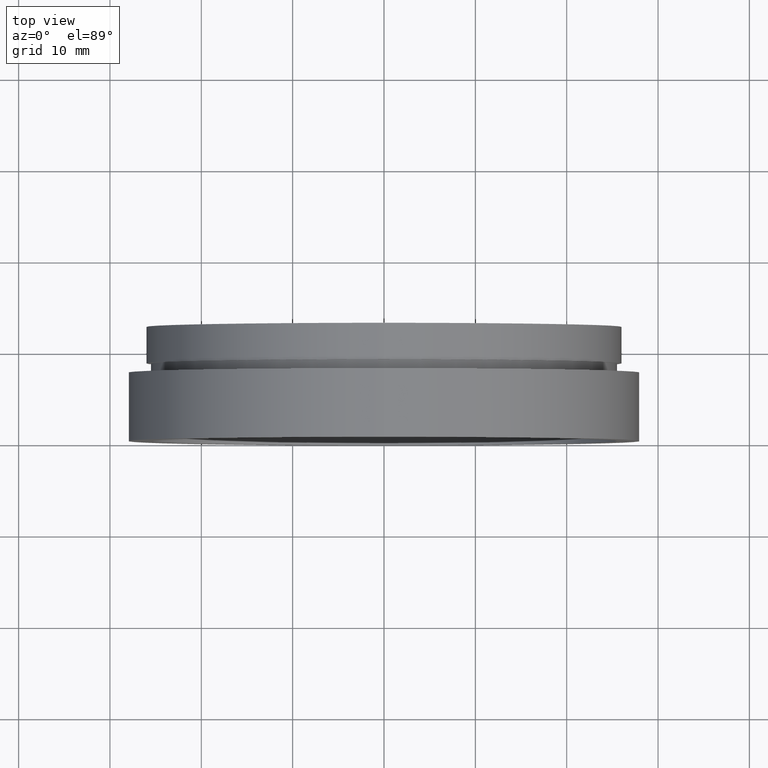
[diagram: clean part render]
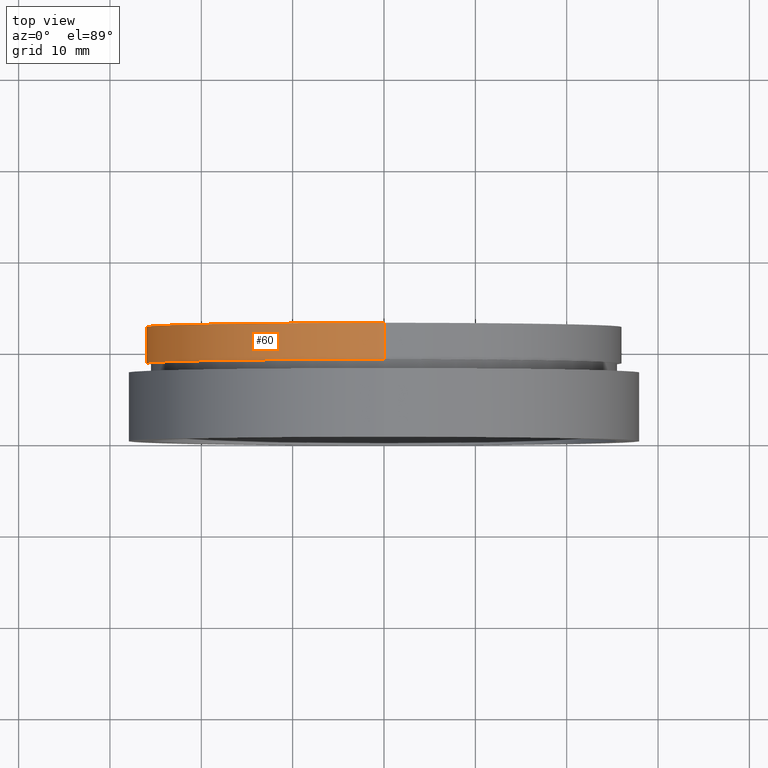
[diagram: same view with one face highlighted and labeled with its STEP entity id]
A machine part, top view. The second image highlights one B-rep face of the part: STEP entity #60.
In plain terms, the highlighted cylindrical surface (partial cylindrical patch) has radius 26 mm, axis along (-0, 1, -0).
Its self-contained STEP definition (entity closure, byte-faithful):
#2 = VECTOR ( 'NONE', #183, 1000.000000000000000 ) ;
#5 = DIRECTION ( 'NONE',  ( -0.0000000000000000000, 1.000000000000000000, -0.0000000000000000000 ) ) ;
#17 = VECTOR ( 'NONE', #327, 1000.000000000000000 ) ;
#26 = FACE_OUTER_BOUND ( 'NONE', #146, .T. ) ;
#36 = CARTESIAN_POINT ( 'NONE',  ( 0.0000000000000000000, 8.499999999999980500, 26.00000000000001800 ) ) ;
#48 = LINE ( 'NONE', #376, #17 ) ;
#49 = CARTESIAN_POINT ( 'NONE',  ( 3.184081677783120200E-015, 12.49999999999998400, -26.00000000000001800 ) ) ;
#60 = ADVANCED_FACE ( 'NONE', ( #26 ), #298, .T. ) ;
#78 = ORIENTED_EDGE ( 'NONE', *, *, #359, .T. ) ;
#92 = VERTEX_POINT ( 'NONE', #230 ) ;
#110 = DIRECTION ( 'NONE',  ( 0.0000000000000000000, 0.0000000000000000000, 1.000000000000000000 ) ) ;
#118 = EDGE_CURVE ( 'NONE', #92, #252, #48, .T. ) ;
#146 = EDGE_LOOP ( 'NONE', ( #437, #78, #274, #205 ) ) ;
#170 = EDGE_CURVE ( 'NONE', #184, #453, #581, .T. ) ;
#180 = DIRECTION ( 'NONE',  ( -0.0000000000000000000, 1.000000000000000000, -0.0000000000000000000 ) ) ;
#181 = AXIS2_PLACEMENT_3D ( 'NONE', #248, #5, #110 ) ;
#183 = DIRECTION ( 'NONE',  ( -0.0000000000000000000, 1.000000000000000000, -0.0000000000000000000 ) ) ;
#184 = VERTEX_POINT ( 'NONE', #36 ) ;
#202 = EDGE_CURVE ( 'NONE', #252, #453, #507, .T. ) ;
#205 = ORIENTED_EDGE ( 'NONE', *, *, #202, .F. ) ;
#223 = CARTESIAN_POINT ( 'NONE',  ( 0.0000000000000000000, 161.3761669434274500, 0.0000000000000000000 ) ) ;
#230 = CARTESIAN_POINT ( 'NONE',  ( 3.184081677783120200E-015, 8.499999999999980500, -26.00000000000001800 ) ) ;
#248 = CARTESIAN_POINT ( 'NONE',  ( 0.0000000000000000000, 8.499999999999980500, 0.0000000000000000000 ) ) ;
#251 = AXIS2_PLACEMENT_3D ( 'NONE', #223, #180, #268 ) ;
#252 = VERTEX_POINT ( 'NONE', #49 ) ;
#268 = DIRECTION ( 'NONE',  ( 0.0000000000000000000, 0.0000000000000000000, 1.000000000000000000 ) ) ;
#274 = ORIENTED_EDGE ( 'NONE', *, *, #170, .T. ) ;
#298 = CYLINDRICAL_SURFACE ( 'NONE', #251, 26.00000000000001800 ) ;
#309 = AXIS2_PLACEMENT_3D ( 'NONE', #619, #480, #332 ) ;
#327 = DIRECTION ( 'NONE',  ( -0.0000000000000000000, 1.000000000000000000, -0.0000000000000000000 ) ) ;
#332 = DIRECTION ( 'NONE',  ( 0.0000000000000000000, 0.0000000000000000000, 1.000000000000000000 ) ) ;
#359 = EDGE_CURVE ( 'NONE', #92, #184, #537, .T. ) ;
#376 = CARTESIAN_POINT ( 'NONE',  ( 3.184081677783120200E-015, 161.3761669434274500, -26.00000000000001800 ) ) ;
#437 = ORIENTED_EDGE ( 'NONE', *, *, #118, .F. ) ;
#453 = VERTEX_POINT ( 'NONE', #591 ) ;
#480 = DIRECTION ( 'NONE',  ( -0.0000000000000000000, 1.000000000000000000, -0.0000000000000000000 ) ) ;
#507 = CIRCLE ( 'NONE', #309, 26.00000000000001800 ) ;
#522 = CARTESIAN_POINT ( 'NONE',  ( 0.0000000000000000000, 161.3761669434274500, 26.00000000000001800 ) ) ;
#537 = CIRCLE ( 'NONE', #181, 26.00000000000001800 ) ;
#581 = LINE ( 'NONE', #522, #2 ) ;
#591 = CARTESIAN_POINT ( 'NONE',  ( 0.0000000000000000000, 12.49999999999998400, 26.00000000000001800 ) ) ;
#619 = CARTESIAN_POINT ( 'NONE',  ( 0.0000000000000000000, 12.49999999999998400, 0.0000000000000000000 ) ) ;